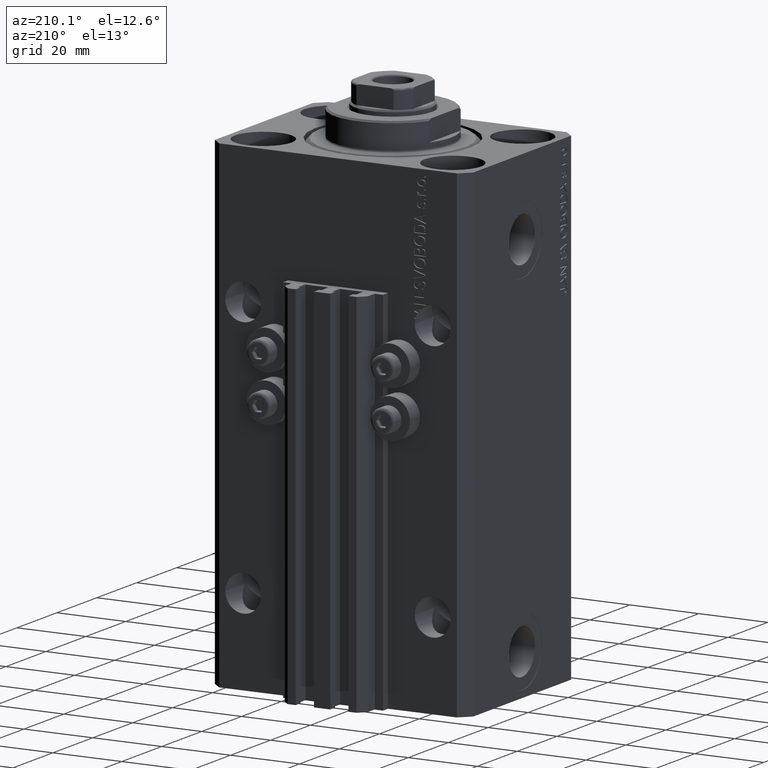
[diagram: clean part render]
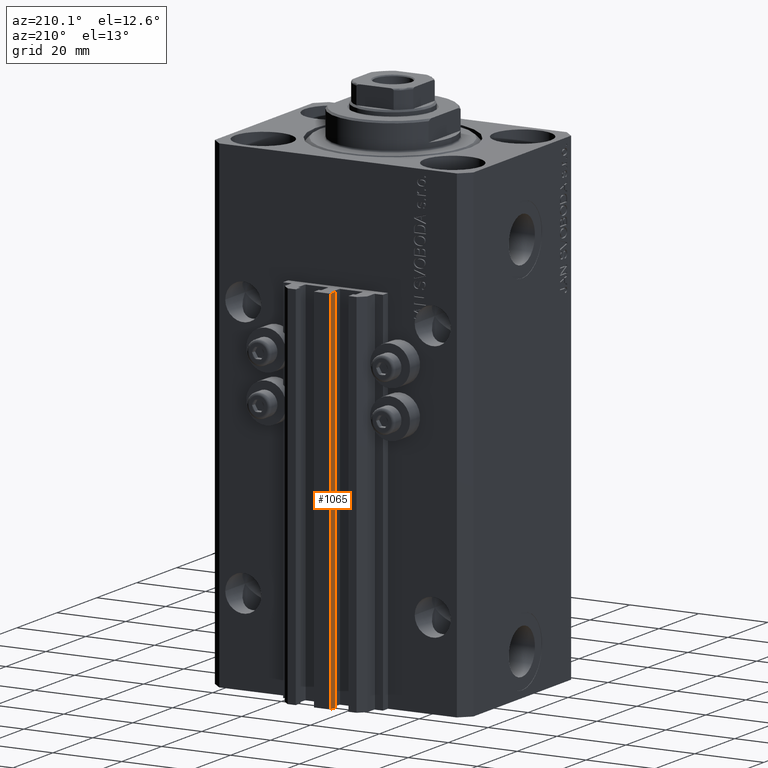
[diagram: same view with one face highlighted and labeled with its STEP entity id]
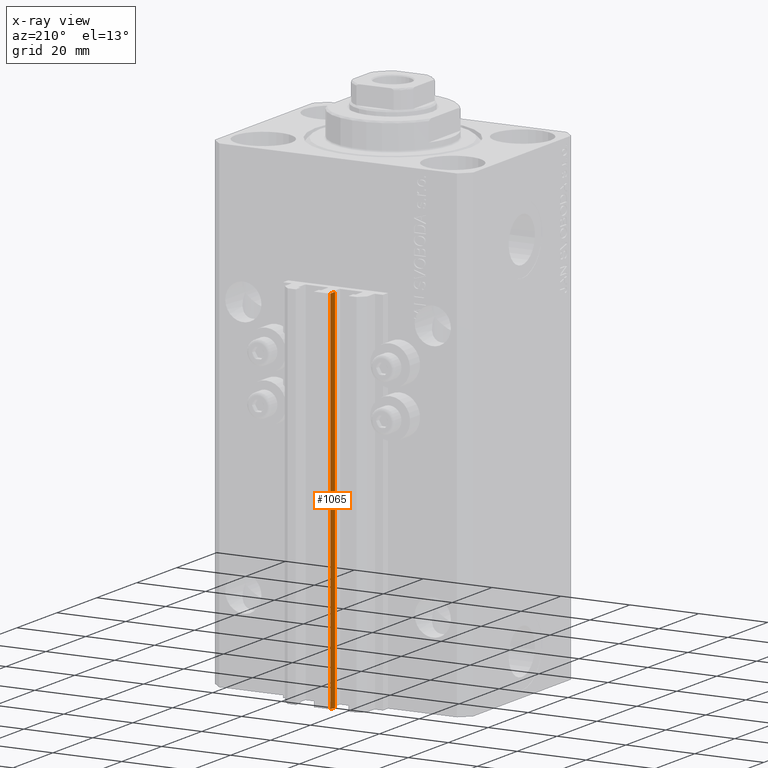
[diagram: x-ray of the same camera — body ghosted, the highlighted face saturated]
A machine part, auxiliary view. The second image highlights one B-rep face of the part: STEP entity #1065.
The next image is the same camera in x-ray: the body ghosted, the highlighted face saturated — about 0% of this face is hidden behind the body in this view.
In plain terms, the highlighted planar face has unit normal (-1, -0, 0).
Its self-contained STEP definition (entity closure, byte-faithful):
#1065 = ADVANCED_FACE ( 'NONE', ( #2309 ), #31057, .T. ) ;
#2309 = FACE_OUTER_BOUND ( 'NONE', #31482, .T. ) ;
#2947 = AXIS2_PLACEMENT_3D ( 'NONE', #45648, #12851, #16923 ) ;
#3974 = EDGE_CURVE ( 'NONE', #27267, #14634, #15684, .T. ) ;
#4924 = CARTESIAN_POINT ( 'NONE',  ( -2.350000000000003642, 35.50000000000001421, -140.0000000000000000 ) ) ;
#6548 = VERTEX_POINT ( 'NONE', #11459 ) ;
#7323 = CARTESIAN_POINT ( 'NONE',  ( -2.350000000000003197, 33.10000000000000853, -33.00000000000000000 ) ) ;
#8208 = EDGE_CURVE ( 'NONE', #6548, #14634, #36970, .T. ) ;
#11107 = ORIENTED_EDGE ( 'NONE', *, *, #32662, .F. ) ;
#11459 = CARTESIAN_POINT ( 'NONE',  ( -2.350000000000003197, 33.10000000000000853, -140.0000000000000000 ) ) ;
#11620 = DIRECTION ( 'NONE',  ( 1.807003620809174632E-16, -1.000000000000000000, 0.000000000000000000 ) ) ;
#12851 = DIRECTION ( 'NONE',  ( -1.000000000000000000, -1.807003620809174878E-16, 0.000000000000000000 ) ) ;
#12871 = VECTOR ( 'NONE', #30672, 1000.000000000000000 ) ;
#14634 = VERTEX_POINT ( 'NONE', #7323 ) ;
#14939 = DIRECTION ( 'NONE',  ( 0.000000000000000000, 0.000000000000000000, 1.000000000000000000 ) ) ;
#15684 = LINE ( 'NONE', #41297, #36696 ) ;
#16302 = LINE ( 'NONE', #23490, #12871 ) ;
#16923 = DIRECTION ( 'NONE',  ( 1.807003620809174878E-16, -1.000000000000000000, 0.000000000000000000 ) ) ;
#20653 = VECTOR ( 'NONE', #14939, 1000.000000000000000 ) ;
#21933 = LINE ( 'NONE', #43707, #40618 ) ;
#23490 = CARTESIAN_POINT ( 'NONE',  ( -2.350000000000003642, 35.50000000000001421, -140.0000000000000000 ) ) ;
#26301 = CARTESIAN_POINT ( 'NONE',  ( -2.350000000000003642, 35.50000000000001421, -33.00000000000000000 ) ) ;
#27267 = VERTEX_POINT ( 'NONE', #26301 ) ;
#29789 = CARTESIAN_POINT ( 'NONE',  ( -2.350000000000003197, 33.10000000000000853, -140.0000000000000000 ) ) ;
#30672 = DIRECTION ( 'NONE',  ( 0.000000000000000000, 0.000000000000000000, 1.000000000000000000 ) ) ;
#31057 = PLANE ( 'NONE',  #2947 ) ;
#31427 = ORIENTED_EDGE ( 'NONE', *, *, #8208, .T. ) ;
#31482 = EDGE_LOOP ( 'NONE', ( #42193, #11107, #47218, #31427 ) ) ;
#32662 = EDGE_CURVE ( 'NONE', #37657, #27267, #16302, .T. ) ;
#36696 = VECTOR ( 'NONE', #37950, 1000.000000000000000 ) ;
#36970 = LINE ( 'NONE', #29789, #20653 ) ;
#37657 = VERTEX_POINT ( 'NONE', #4924 ) ;
#37950 = DIRECTION ( 'NONE',  ( 1.807003620809174632E-16, -1.000000000000000000, 0.000000000000000000 ) ) ;
#39775 = EDGE_CURVE ( 'NONE', #37657, #6548, #21933, .T. ) ;
#40618 = VECTOR ( 'NONE', #11620, 1000.000000000000000 ) ;
#41297 = CARTESIAN_POINT ( 'NONE',  ( -2.350000000000003642, 35.50000000000001421, -33.00000000000000000 ) ) ;
#42193 = ORIENTED_EDGE ( 'NONE', *, *, #3974, .F. ) ;
#43707 = CARTESIAN_POINT ( 'NONE',  ( -2.350000000000003642, 35.50000000000001421, -140.0000000000000000 ) ) ;
#45648 = CARTESIAN_POINT ( 'NONE',  ( -2.350000000000003642, 35.50000000000001421, -140.0000000000000000 ) ) ;
#47218 = ORIENTED_EDGE ( 'NONE', *, *, #39775, .T. ) ;